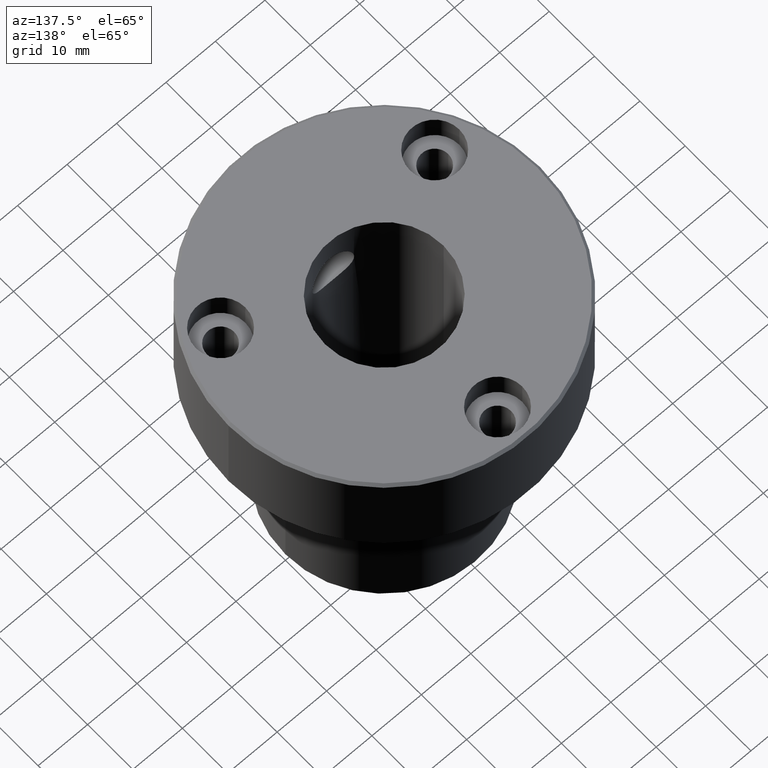
[diagram: clean part render]
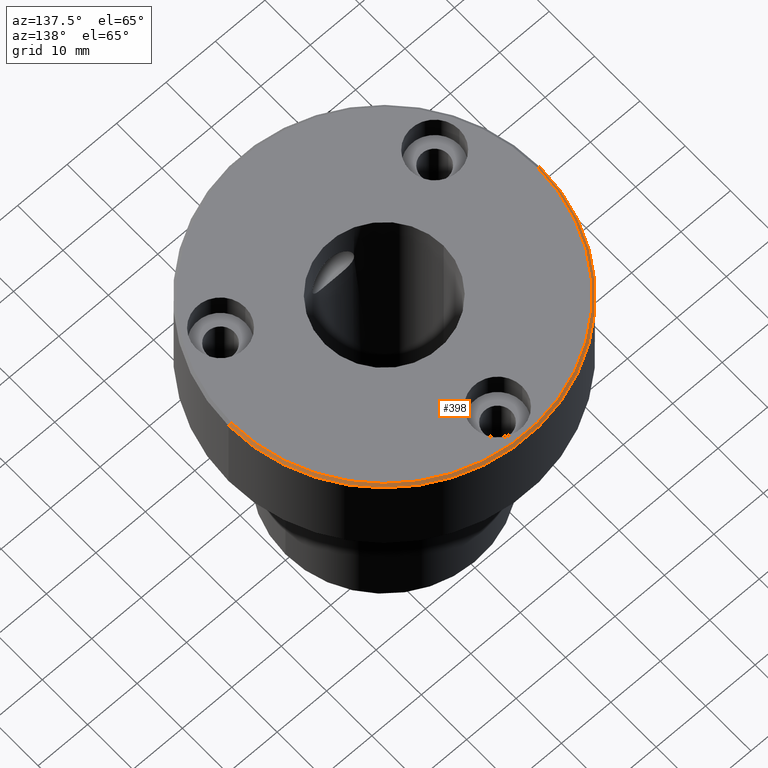
[diagram: same view with one face highlighted and labeled with its STEP entity id]
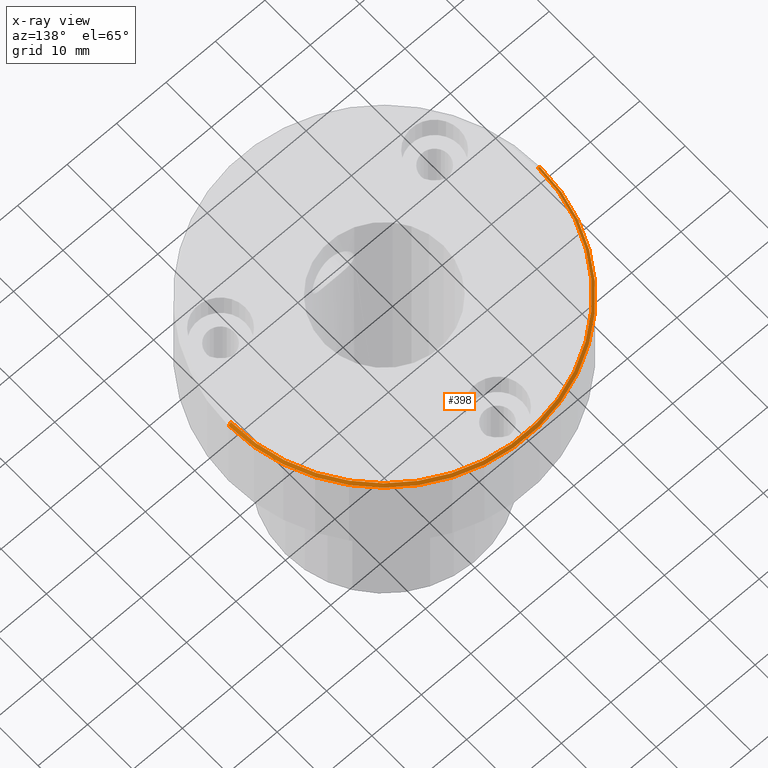
[diagram: x-ray of the same camera — body ghosted, the highlighted face saturated]
A machine part, auxiliary view. The second image highlights one B-rep face of the part: STEP entity #398.
The next image is the same camera in x-ray: the body ghosted, the highlighted face saturated — about 0% of this face is hidden behind the body in this view.
In plain terms, the highlighted conical surface has half-angle 45 deg.
Its self-contained STEP definition (entity closure, byte-faithful):
#32 = AXIS2_PLACEMENT_3D ( 'NONE', #317, #1203, #325 ) ;
#51 = ORIENTED_EDGE ( 'NONE', *, *, #210, .F. ) ;
#65 = VERTEX_POINT ( 'NONE', #134 ) ;
#74 = DIRECTION ( 'NONE',  ( 0.000000000000000000, 0.000000000000000000, -1.000000000000000000 ) ) ;
#110 = CARTESIAN_POINT ( 'NONE',  ( 31.50000000000000000, 0.000000000000000000, -0.5000000000000005551 ) ) ;
#124 = DIRECTION ( 'NONE',  ( 0.000000000000000000, 0.000000000000000000, -1.000000000000000000 ) ) ;
#134 = CARTESIAN_POINT ( 'NONE',  ( 30.99999999999998579, 3.827021247335478113E-15, 0.000000000000000000 ) ) ;
#142 = EDGE_CURVE ( 'NONE', #226, #1231, #280, .T. ) ;
#166 = CARTESIAN_POINT ( 'NONE',  ( 0.000000000000000000, 0.000000000000000000, -0.5000000000000005551 ) ) ;
#167 = AXIS2_PLACEMENT_3D ( 'NONE', #988, #124, #940 ) ;
#210 = EDGE_CURVE ( 'NONE', #65, #608, #751, .T. ) ;
#226 = VERTEX_POINT ( 'NONE', #507 ) ;
#280 = CIRCLE ( 'NONE', #994, 31.50000000000000000 ) ;
#302 = CONICAL_SURFACE ( 'NONE', #167, 30.99999999999998579, 0.7853981633974621568 ) ;
#317 = CARTESIAN_POINT ( 'NONE',  ( 0.000000000000000000, 0.000000000000000000, 0.000000000000000000 ) ) ;
#325 = DIRECTION ( 'NONE',  ( 1.000000000000000000, 0.000000000000000000, 0.000000000000000000 ) ) ;
#398 = ADVANCED_FACE ( 'NONE', ( #609 ), #302, .T. ) ;
#507 = CARTESIAN_POINT ( 'NONE',  ( -31.50000000000000000, 3.857637417314162689E-15, -0.5000000000000005551 ) ) ;
#515 = EDGE_LOOP ( 'NONE', ( #51, #1016, #1209, #997 ) ) ;
#524 = LINE ( 'NONE', #816, #601 ) ;
#559 = DIRECTION ( 'NONE',  ( 0.7071067811865573427, 8.659560562355054885E-17, -0.7071067811865378028 ) ) ;
#563 = VECTOR ( 'NONE', #559, 1000.000000000000000 ) ;
#587 = CARTESIAN_POINT ( 'NONE',  ( 30.99999999999998579, 3.796405077356793537E-15, 0.000000000000000000 ) ) ;
#601 = VECTOR ( 'NONE', #1224, 1000.000000000000000 ) ;
#608 = VERTEX_POINT ( 'NONE', #630 ) ;
#609 = FACE_OUTER_BOUND ( 'NONE', #515, .T. ) ;
#630 = CARTESIAN_POINT ( 'NONE',  ( -30.99999999999998579, 0.000000000000000000, 0.000000000000000000 ) ) ;
#751 = CIRCLE ( 'NONE', #32, 30.99999999999998579 ) ;
#764 = DIRECTION ( 'NONE',  ( 1.000000000000000000, 0.000000000000000000, 0.000000000000000000 ) ) ;
#806 = EDGE_CURVE ( 'NONE', #65, #1231, #857, .T. ) ;
#816 = CARTESIAN_POINT ( 'NONE',  ( -30.99999999999998579, 0.000000000000000000, 0.000000000000000000 ) ) ;
#857 = LINE ( 'NONE', #587, #563 ) ;
#940 = DIRECTION ( 'NONE',  ( -1.000000000000000000, 0.000000000000000000, 0.000000000000000000 ) ) ;
#988 = CARTESIAN_POINT ( 'NONE',  ( 0.000000000000000000, 0.000000000000000000, 0.000000000000000000 ) ) ;
#994 = AXIS2_PLACEMENT_3D ( 'NONE', #166, #74, #764 ) ;
#997 = ORIENTED_EDGE ( 'NONE', *, *, #1167, .F. ) ;
#1016 = ORIENTED_EDGE ( 'NONE', *, *, #806, .T. ) ;
#1167 = EDGE_CURVE ( 'NONE', #608, #226, #524, .T. ) ;
#1203 = DIRECTION ( 'NONE',  ( -0.000000000000000000, -0.000000000000000000, 1.000000000000000000 ) ) ;
#1209 = ORIENTED_EDGE ( 'NONE', *, *, #142, .F. ) ;
#1224 = DIRECTION ( 'NONE',  ( -0.7071067811865573427, 0.000000000000000000, -0.7071067811865378028 ) ) ;
#1231 = VERTEX_POINT ( 'NONE', #110 ) ;